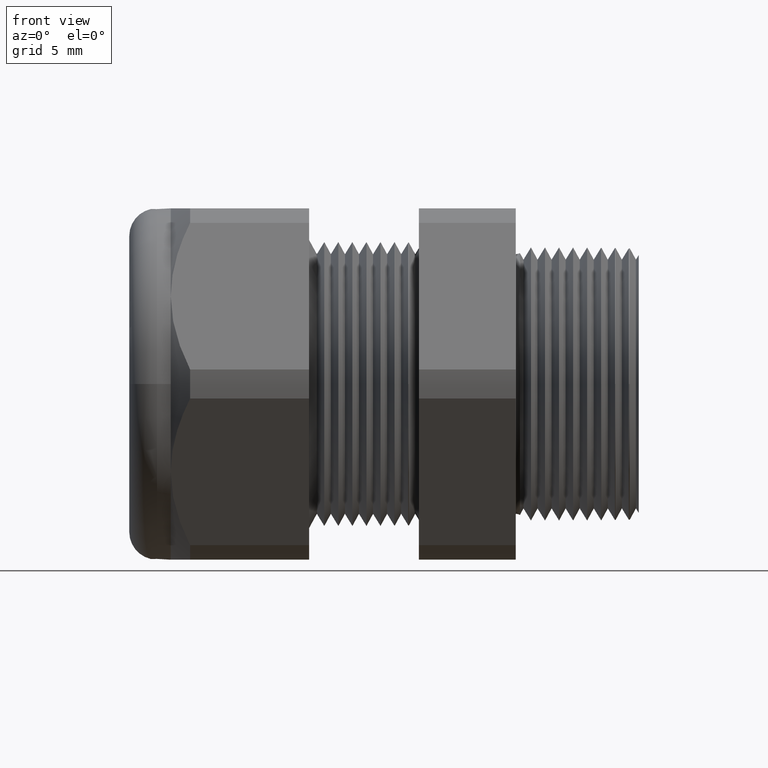
[diagram: clean part render]
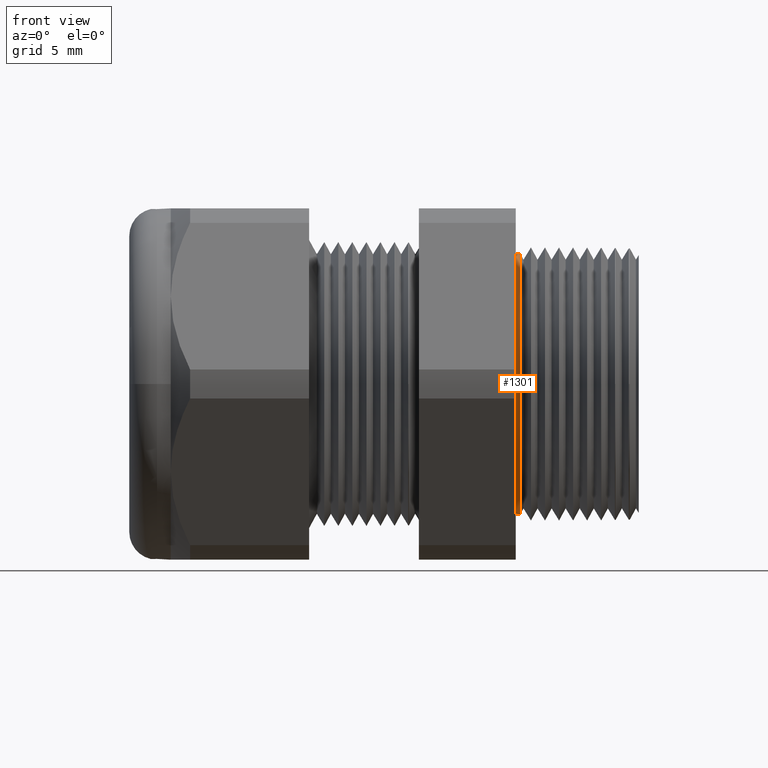
[diagram: same view with one face highlighted and labeled with its STEP entity id]
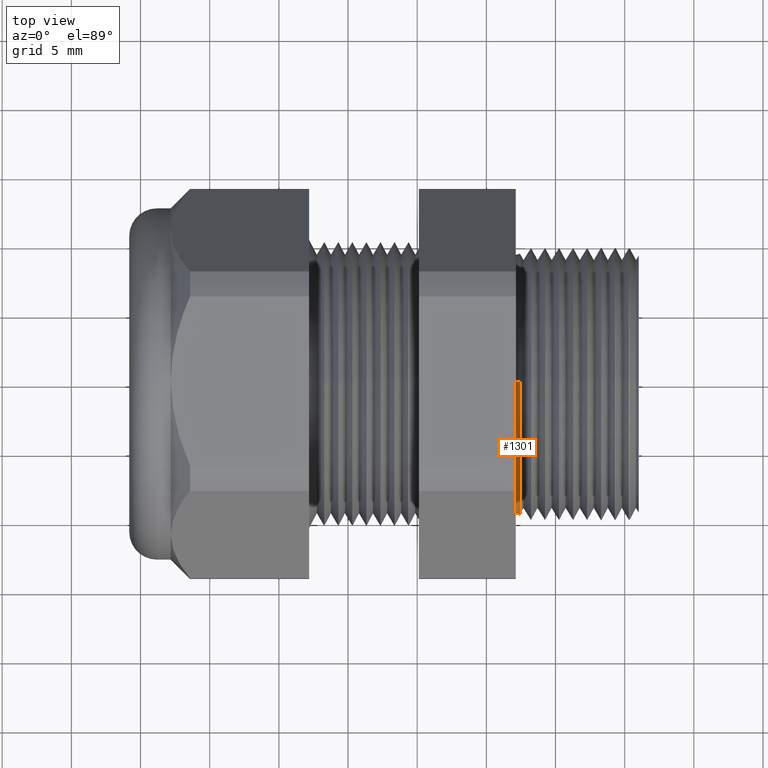
[diagram: same view with one face highlighted and labeled with its STEP entity id]
A machine part, front view. The second image highlights one B-rep face of the part: STEP entity #1301.
A second angle (top view) of the same face is appended — the face is thin or edge-on in the first view.
In plain terms, the highlighted toroidal blend (fillet) surface has major radius 10.0228 mm and minor (blend) radius 0.635 mm.
Its self-contained STEP definition (entity closure, byte-faithful):
#650 = VERTEX_POINT ( 'NONE', #2390 ) ;
#651 = VERTEX_POINT ( 'NONE', #2389 ) ;
#726 = EDGE_CURVE ( 'NONE', #650, #651, #2457, .T. ) ;
#1260 = VERTEX_POINT ( 'NONE', #3517 ) ;
#1301 = ADVANCED_FACE ( 'NONE', ( #3561 ), #3560, .F. ) ;
#1302 = EDGE_LOOP ( 'NONE', ( #1303, #1304, #1306, #1307 ) ) ;
#1303 = ORIENTED_EDGE ( 'NONE', *, *, #1330, .T. ) ;
#1304 = ORIENTED_EDGE ( 'NONE', *, *, #1305, .T. ) ;
#1305 = EDGE_CURVE ( 'NONE', #1260, #651, #3620, .T. ) ;
#1306 = ORIENTED_EDGE ( 'NONE', *, *, #726, .F. ) ;
#1307 = ORIENTED_EDGE ( 'NONE', *, *, #1308, .T. ) ;
#1308 = EDGE_CURVE ( 'NONE', #650, #1331, #3615, .T. ) ;
#1330 = EDGE_CURVE ( 'NONE', #1331, #1260, #3638, .T. ) ;
#1331 = VERTEX_POINT ( 'NONE', #3633 ) ;
#2389 = CARTESIAN_POINT ( 'NONE',  ( -0.3100000000000000000, 0.0000000000000000000, -0.3695977295967106100 ) ) ;
#2390 = CARTESIAN_POINT ( 'NONE',  ( -0.2980710309935099600, 4.563368323999898800E-017, -0.3726273017801617300 ) ) ;
#2456 = AXIS2_PLACEMENT_3D ( 'NONE', #2463, #2519, #2518 ) ;
#2457 = CIRCLE ( 'NONE', #2456, 0.02500000000000000500 ) ;
#2463 = CARTESIAN_POINT ( 'NONE',  ( -0.3100000000000000000, 0.0000000000000000000, -0.3945977295967106300 ) ) ;
#2518 = DIRECTION ( 'NONE',  ( 0.0000000000000000000, 0.0000000000000000000, -1.000000000000000000 ) ) ;
#2519 = DIRECTION ( 'NONE',  ( 0.0000000000000000000, -1.000000000000000000, 0.0000000000000000000 ) ) ;
#3057 = DIRECTION ( 'NONE',  ( 1.000000000000000000, 0.0000000000000000000, 0.0000000000000000000 ) ) ;
#3305 = DIRECTION ( 'NONE',  ( 0.0000000000000000000, 0.0000000000000000000, -1.000000000000000000 ) ) ;
#3517 = CARTESIAN_POINT ( 'NONE',  ( -0.3100000000000000000, 4.526266765227406200E-017, 0.3695977295967106100 ) ) ;
#3558 = CARTESIAN_POINT ( 'NONE',  ( -0.3100000000000000000, 0.0000000000000000000, 0.0000000000000000000 ) ) ;
#3559 = AXIS2_PLACEMENT_3D ( 'NONE', #3558, #3057, #3305 ) ;
#3560 = TOROIDAL_SURFACE ( 'NONE', #3559, 0.3945977295967106300, 0.02500000000000002900 ) ;
#3561 = FACE_OUTER_BOUND ( 'NONE', #1302, .T. ) ;
#3611 = DIRECTION ( 'NONE',  ( 0.0000000000000000000, 0.0000000000000000000, 1.000000000000000000 ) ) ;
#3612 = DIRECTION ( 'NONE',  ( -1.000000000000000000, 0.0000000000000000000, 0.0000000000000000000 ) ) ;
#3613 = CARTESIAN_POINT ( 'NONE',  ( -0.2980710309935099600, 0.0000000000000000000, 0.0000000000000000000 ) ) ;
#3614 = AXIS2_PLACEMENT_3D ( 'NONE', #3613, #3612, #3611 ) ;
#3615 = CIRCLE ( 'NONE', #3614, 0.3726273017801617300 ) ;
#3616 = DIRECTION ( 'NONE',  ( 0.0000000000000000000, 0.0000000000000000000, -1.000000000000000000 ) ) ;
#3617 = DIRECTION ( 'NONE',  ( 1.000000000000000000, 0.0000000000000000000, 0.0000000000000000000 ) ) ;
#3618 = CARTESIAN_POINT ( 'NONE',  ( -0.3100000000000000000, 0.0000000000000000000, 0.0000000000000000000 ) ) ;
#3619 = AXIS2_PLACEMENT_3D ( 'NONE', #3618, #3617, #3616 ) ;
#3620 = CIRCLE ( 'NONE', #3619, 0.3695977295967106100 ) ;
#3633 = CARTESIAN_POINT ( 'NONE',  ( -0.2980710309935099600, 0.0000000000000000000, 0.3726273017801617300 ) ) ;
#3634 = DIRECTION ( 'NONE',  ( 0.0000000000000000000, 1.224646799147354700E-016, 1.000000000000000000 ) ) ;
#3635 = DIRECTION ( 'NONE',  ( 0.0000000000000000000, 1.000000000000000000, -1.224646799147353200E-016 ) ) ;
#3636 = CARTESIAN_POINT ( 'NONE',  ( -0.3100000000000000000, 4.832428465014244500E-017, 0.3945977295967106300 ) ) ;
#3637 = AXIS2_PLACEMENT_3D ( 'NONE', #3636, #3635, #3634 ) ;
#3638 = CIRCLE ( 'NONE', #3637, 0.02500000000000000500 ) ;